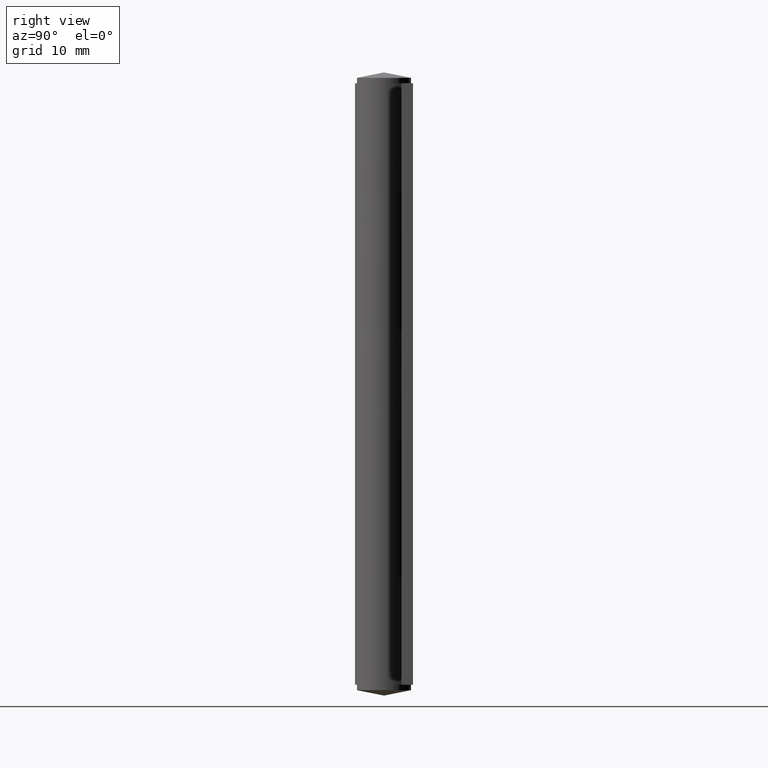
[diagram: clean part render]
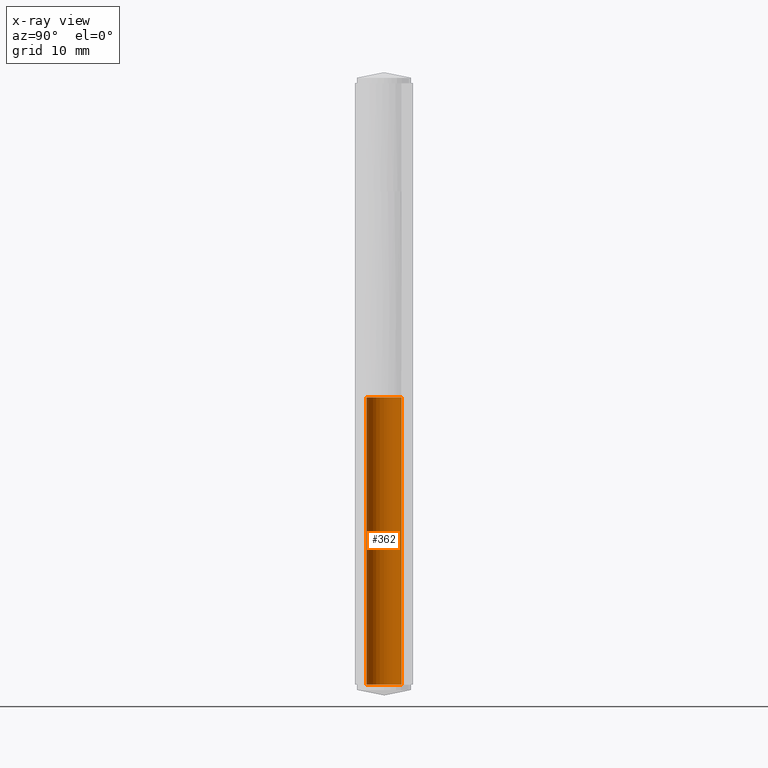
[diagram: x-ray — body ghosted, one internal face saturated and labeled with its STEP entity id]
A machine part, right view, then the same camera in x-ray: the body is ghosted and one INTERNAL B-rep face — a face not visible from any outside direction — is saturated and labeled: STEP entity #362.
In plain terms, the highlighted face is a freeform B-spline surface patch.
Its self-contained STEP definition (entity closure, byte-faithful):
#229=CARTESIAN_POINT('',(-2.599999000000150,0.0,0.0));
#230=VERTEX_POINT('',#229);
#231=CARTESIAN_POINT('',(-0.158727081037320,-2.595148479606052,0.0));
#232=VERTEX_POINT('',#231);
#233=CARTESIAN_POINT('',(-2.599999000000150,0.0,0.0));
#234=CARTESIAN_POINT('',(-2.599999000000150,-2.445833892218204,0.0));
#235=CARTESIAN_POINT('',(-0.158727081037321,-2.595148479606052,0.0));
#243=(BOUNDED_CURVE()B_SPLINE_CURVE(2,(#233,#234,#235),.UNSPECIFIED.,.F.,.U.)B_SPLINE_CURVE_WITH_KNOTS((3,3),(0.500000000000000,0.739332962219134),.UNSPECIFIED.)CURVE()GEOMETRIC_REPRESENTATION_ITEM()RATIONAL_B_SPLINE_CURVE((1.0,0.719603993309918,0.976072041624263))REPRESENTATION_ITEM(''));
#244=EDGE_CURVE('',#230,#232,#243,.T.);
#246=CARTESIAN_POINT('',(0.158725081036622,2.595148479606052,0.0));
#247=VERTEX_POINT('',#246);
#248=CARTESIAN_POINT('',(0.158725081036622,2.595148479606053,1.421085E-014));
#249=CARTESIAN_POINT('',(0.079436123642648,2.599997999999800,0.0));
#250=CARTESIAN_POINT('',(-0.000001000000349,2.599997999999800,0.0));
#251=CARTESIAN_POINT('',(-2.599999000000149,2.599997999999800,0.0));
#252=CARTESIAN_POINT('',(-2.599999000000150,0.0,0.0));
#260=(BOUNDED_CURVE()B_SPLINE_CURVE(2,(#248,#249,#250,#251,#252),.UNSPECIFIED.,.F.,.U.)B_SPLINE_CURVE_WITH_KNOTS((3,2,3),(0.239332962219134,0.250000000000000,0.500000000000000),.UNSPECIFIED.)CURVE()GEOMETRIC_REPRESENTATION_ITEM()RATIONAL_B_SPLINE_CURVE((0.976072041624263,0.987502787876630,1.0,0.707106781186548,1.0))REPRESENTATION_ITEM(''));
#261=EDGE_CURVE('',#247,#230,#260,.T.);
#296=CARTESIAN_POINT('',(0.158725080693187,2.595148479627057,-1.062500000000014));
#297=CARTESIAN_POINT('',(-2.436423398933869,2.753874560320594,-1.062500000000014));
#298=CARTESIAN_POINT('',(-2.595149479627406,0.158726080693537,-1.062500000000014));
#299=CARTESIAN_POINT('',(-2.753875560320943,-2.436422398933520,-1.062500000000014));
#300=CARTESIAN_POINT('',(-0.158727080693886,-2.595148479627057,-1.062500000000014));
#301=CARTESIAN_POINT('',(0.158725080693193,2.595148479627057,43.589062499999997));
#302=CARTESIAN_POINT('',(-2.436423398933863,2.753874560320594,43.589062500000004));
#303=CARTESIAN_POINT('',(-2.595149479627401,0.158726080693537,43.589062499999997));
#304=CARTESIAN_POINT('',(-2.753875560320938,-2.436422398933520,43.589062500000004));
#305=CARTESIAN_POINT('',(-0.158727080693881,-2.595148479627057,43.589062499999997));
#313=(BOUNDED_SURFACE()B_SPLINE_SURFACE(2,1,((#296,#301),(#297,#302),(#298,#303),(#299,#304),(#300,#305)),.UNSPECIFIED.,.F.,.F.,.U.)B_SPLINE_SURFACE_WITH_KNOTS((3,2,3),(2,2),(0.0,4.307817734971357,8.615635469942713),(0.0,44.651562500000033),.UNSPECIFIED.)GEOMETRIC_REPRESENTATION_ITEM()RATIONAL_B_SPLINE_SURFACE(((1.0,1.0),(0.707106781186548,0.707106781186548),(1.0,1.0),(0.707106781186548,0.707106781186548),(1.0,1.0)))REPRESENTATION_ITEM('')SURFACE());
#314=ORIENTED_EDGE('',*,*,#261,.T.);
#315=ORIENTED_EDGE('',*,*,#244,.T.);
#316=CARTESIAN_POINT('',(-0.158727081037316,-2.595148479606052,42.500000000000000));
#317=VERTEX_POINT('',#316);
#318=CARTESIAN_POINT('',(-0.158727081037320,-2.595148479606052,0.0));
#319=CARTESIAN_POINT('',(-0.158727081037316,-2.595148479606052,42.500000000000000));
#320=QUASI_UNIFORM_CURVE('',1,(#318,#319),.UNSPECIFIED.,.F.,.U.);
#321=EDGE_CURVE('',#232,#317,#320,.T.);
#322=ORIENTED_EDGE('',*,*,#321,.T.);
#323=CARTESIAN_POINT('',(-2.599999000000144,0.0,42.500000000000000));
#324=VERTEX_POINT('',#323);
#325=CARTESIAN_POINT('',(-2.599999000000144,0.0,42.500000000000000));
#326=CARTESIAN_POINT('',(-2.599999000000144,-2.445833892218204,42.500000000000000));
#327=CARTESIAN_POINT('',(-0.158727081037316,-2.595148479606052,42.500000000000007));
#335=(BOUNDED_CURVE()B_SPLINE_CURVE(2,(#325,#326,#327),.UNSPECIFIED.,.F.,.U.)B_SPLINE_CURVE_WITH_KNOTS((3,3),(0.500000000000000,0.739332962219134),.UNSPECIFIED.)CURVE()GEOMETRIC_REPRESENTATION_ITEM()RATIONAL_B_SPLINE_CURVE((1.0,0.719603993309918,0.976072041624263))REPRESENTATION_ITEM(''));
#336=EDGE_CURVE('',#324,#317,#335,.T.);
#337=ORIENTED_EDGE('',*,*,#336,.F.);
#338=CARTESIAN_POINT('',(0.158725081036627,2.595148479606052,42.500000000000000));
#339=VERTEX_POINT('',#338);
#340=CARTESIAN_POINT('',(0.158725081036627,2.595148479606053,42.500000000000007));
#341=CARTESIAN_POINT('',(0.079436123642653,2.599997999999800,42.500000000000000));
#342=CARTESIAN_POINT('',(-0.000001000000344,2.599997999999800,42.500000000000000));
#343=CARTESIAN_POINT('',(-2.599999000000145,2.599997999999800,42.500000000000000));
#344=CARTESIAN_POINT('',(-2.599999000000144,0.0,42.500000000000000));
#352=(BOUNDED_CURVE()B_SPLINE_CURVE(2,(#340,#341,#342,#343,#344),.UNSPECIFIED.,.F.,.U.)B_SPLINE_CURVE_WITH_KNOTS((3,2,3),(0.239332962219134,0.250000000000000,0.500000000000000),.UNSPECIFIED.)CURVE()GEOMETRIC_REPRESENTATION_ITEM()RATIONAL_B_SPLINE_CURVE((0.976072041624263,0.987502787876630,1.0,0.707106781186548,1.0))REPRESENTATION_ITEM(''));
#353=EDGE_CURVE('',#339,#324,#352,.T.);
#354=ORIENTED_EDGE('',*,*,#353,.F.);
#355=CARTESIAN_POINT('',(0.158725081036622,2.595148479606052,0.0));
#356=CARTESIAN_POINT('',(0.158725081036627,2.595148479606052,42.500000000000000));
#357=QUASI_UNIFORM_CURVE('',1,(#355,#356),.UNSPECIFIED.,.F.,.U.);
#358=EDGE_CURVE('',#247,#339,#357,.T.);
#359=ORIENTED_EDGE('',*,*,#358,.F.);
#360=EDGE_LOOP('',(#314,#315,#322,#337,#354,#359));
#361=FACE_OUTER_BOUND('',#360,.T.);
#362=ADVANCED_FACE('',(#361),#313,.T.);